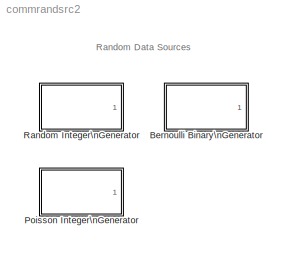
MODEL commrandsrc2
KIND library
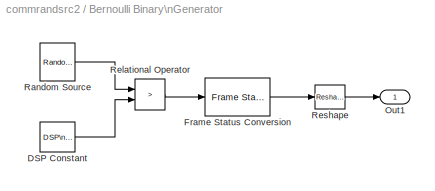
BLOCK [SubSystem] Bernoulli Binary\nGenerator
  MaskCallbackString = |||commblkbernoullisrc2(gcb,'cbFrameBased');||commblkbernoullisrc2(gcb,'cbOrient');
  MaskDescription = Generate a Bernoulli random binary number.  \nTo generate a vector output, specify the probability as a vector.
  MaskDisplay = plot(0,0,100,100,[95 5 10 10 10 reshape(([85*[0:1/15:1-1/15]+10; 85*[1/15:1/15:1]+10]),1,30)],[75 75 75 70 95 90 90 90 90 80 80 80 80 90 90 80 80 80 80 90 90 90 90 80 80 80 80 90 90 90 90 80 80 90 90]); \ndisp('\\nBernoulli\\nBinary')
  MaskEnableString = on,on,on,on,off,on
  MaskHelp = helpview(commbhelp)
  MaskIconFrame = on
  MaskIconOpaque = on
  MaskIconRotate = none
  MaskIconUnits = autoscale
  MaskInitialization = if (frameBased & sampPerFrame > 1)\n	dsp_sampFrame = sampPerFrame;\nelse\n	dsp_sampFrame = 1;\nend;\n[P, seed, eStr] = commblkbernoullisrc2(gcb,'init');\nif (eStr.ecode == 1)\n    error(eStr.emsg);\nend;
  MaskPromptString = Probability of a zero:|Initial seed:|Sample time:|Frame-based outputs|Samples per frame:|Interpret vector parameters as 1-D
  MaskSelfModifiable = on
  MaskStyleString = edit,edit,edit,checkbox,edit,checkbox
  MaskTabNameString = ,,,,,
  MaskToolTipString = on,on,on,on,on,on
  MaskTunableValueString = on,on,on,on,on,on
  MaskType = Bernoulli Binary Generator
  MaskValueString = 0.5|61|1|off|1|off
  MaskVarAliasString = ,,,,,
  MaskVariables = P=@1;seed=@2;Ts=@3;frameBased=@4;sampPerFrame=@5;orient=@6;
  MaskVisibilityString = on,on,on,on,on,on
  MinAlgLoopOccurrences = off
  Ports = [0, 1]
  PropExecContextAcrossSSBoundary = on
  RTWSystemCode = Auto
  TreatAsAtomicUnit = off
BLOCK [Reference] Bernoulli Binary\nGenerator/DSP Constant  REF=dspsrcs4/DSP\nConstant
  FramebasedOutput = off
  InterpretAs1D = off
  Ports = [0, 1]
  SampleMode = Discrete
  SourceBlock = dspsrcs4/DSP\nConstant
  SourceType = DSP Constant
  Ts = Ts
  Value = P
  additionalParams = off
  allowOverrides = on
  continuousOutput = Sample-based
  dataType = Inherit from 'Constant value'
  discreteOutput = Sample-based
  fracBitsMode = Best precision
  framePeriod = Ts
  numFracBits = 15
  sampTime = Ts
  udDataType = sfix(16)
  wordLen = 16
BLOCK [Reference] Bernoulli Binary\nGenerator/Frame Status Conversion  REF=dspsigattribs/Frame Status\nConversion
  Ports = [1, 1]
  SourceBlock = dspsigattribs/Frame Status\nConversion
  SourceType = Frame Status Conversion
  growRefPort = off
  outframe = Sample-based
BLOCK [Outport] Bernoulli Binary\nGenerator/Out1
  BusOutputAsStruct = off
  IconDisplay = Port number
BLOCK [Reference] Bernoulli Binary\nGenerator/Random Source  REF=dspsrcs4/Random\nSource
  CltLength = 12
  DataType = Double
  Diagnostics = AllowInheritedTsInSrc
  Inherit = off
  Max = 1
  Mean = 0
  Min = 0
  NormMethod = Ziggurat
  OutComplex = Real
  Ports = [0, 1]
  RepMode = Specify seed
  SampFrame = dsp_sampFrame
  SampMode = Discrete
  SampTime = Ts
  Seed = seed
  SourceBlock = dspsrcs4/Random\nSource
  SourceType = Random Source
  SrcType = Uniform
  Var = 1
BLOCK [RelationalOperator] Bernoulli Binary\nGenerator/Relational Operator
  LogicDataType = float('double')
  LogicOutDataTypeMode = Specify via dialog
  Operator = >
BLOCK [Reference] Bernoulli Binary\nGenerator/Reshape  REF=simulink/Math\nOperations/Reshape
  OutputDimensionality = Row vector
  OutputDimensions = [sampPerFrame,max(length(P),length(seed))]
  Ports = [1, 1]
  SourceBlock = simulink/Math\nOperations/Reshape
  SourceType = Reshape
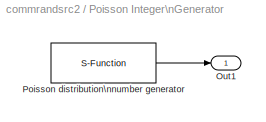
BLOCK [SubSystem] Poisson Integer\nGenerator
  MaskCallbackString = |||commblkpoissrc(gcb,'cbFrameBased');||commblkpoissrc(gcb,'cbOrient');
  MaskDescription = Generate Poisson distributed random integers.
  MaskDisplay = plot(0,0,100,100,[95 5 10 10 10 reshape(([85*[0:1/15:1-1/15]+10; 85*[1/15:1/15:1]+10]),1,30)],[75 75 75 70 95 reshape([randint(1,15,[75,95],54321); randint(1,15,[75,95],54321)],1,30)]);\ndisp('\\nPoisson\\nInteger');\n
  MaskEnableString = on,on,on,on,off,on
  MaskHelp = helpview(commbhelp);
  MaskIconFrame = on
  MaskIconOpaque = on
  MaskIconRotate = none
  MaskIconUnits = autoscale
  MaskInitialization = [eStr, numChan, lambda, seed, orientSBVec] = commblkpoissrc(gcb, 'init');\nif (eStr.ecode==1), \n	error(eStr.emsg);\nend;
  MaskPromptString = Lambda:|Initial seed:|Sample time:|Frame-based outputs|Samples per frame:|Interpret vector parameters as 1-D
  MaskSelfModifiable = on
  MaskStyleString = edit,edit,edit,checkbox,edit,checkbox
  MaskTabNameString = ,,,,,
  MaskToolTipString = on,on,on,on,on,on
  MaskTunableValueString = on,on,on,on,on,on
  MaskType = Poisson Integer Generator
  MaskValueString = 0.1|43|1|off|1|off
  MaskVarAliasString = ,,,,,
  MaskVariables = lambda=@1;seed=@2;Ts=@3;frameBased=@4;sampPerFrame=@5;orient=@6;
  MaskVisibilityString = on,on,on,on,on,on
  MinAlgLoopOccurrences = off
  Ports = [0, 1]
  PropExecContextAcrossSSBoundary = on
  RTWSystemCode = Auto
  TreatAsAtomicUnit = off
BLOCK [Outport] Poisson Integer\nGenerator/Out1
  BusOutputAsStruct = off
  IconDisplay = Port number
BLOCK [S-Function] Poisson Integer\nGenerator/Poisson distribution\nnumber generator
  FunctionName = scompoissrc2
  Parameters = seed, lambda, Ts, numChan, frameBased, sampPerFrame, orient, orientSBVec
  Ports = [0, 1]
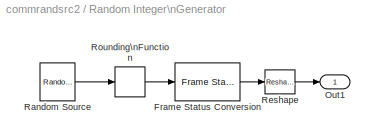
BLOCK [SubSystem] Random Integer\nGenerator
  MaskCallbackString = |||commblkrandintsrc2(gcb,'cbFrameBased');||commblkrandintsrc2(gcb,'cbOrient');
  MaskDescription = Generate random uniformly distributed integers in the range [0, M-1], where M is the M-ary number.
  MaskDisplay = plot(0,0,100,100,[95 5 10 10 10 reshape(([85*[0:1/15:1-1/15]+10; 85*[1/15:1/15:1]+10]),1,30)],[75 75 75 70 95 94 94 78 78 91 91 86 86 88 88 77 77 79 79 78 78 79 79 87 87 85 85 76 76 80 80 95 95 89 89]);\ndisp('\\nRandom\\nInteger')
  MaskEnableString = on,on,on,on,off,on
  MaskHelp = helpview(commbhelp)
  MaskIconFrame = on
  MaskIconOpaque = on
  MaskIconRotate = none
  MaskIconUnits = autoscale
  MaskInitialization = if (frameBased & sampPerFrame > 1), dsp_sampFrame = sampPerFrame;\nelse dsp_sampFrame = 1; end\neStr=commblkrandintsrc2(gcb,'init');\nif(eStr.ecode==1)\n    error(eStr.emsg);\nend
  MaskPromptString = M-ary number:|Initial seed:|Sample time:|Frame-based outputs|Samples per frame:|Interpret vector parameters as 1-D
  MaskSelfModifiable = on
  MaskStyleString = edit,edit,edit,checkbox,edit,checkbox
  MaskTabNameString = ,,,,,
  MaskToolTipString = on,on,on,on,on,on
  MaskTunableValueString = on,on,on,on,on,on
  MaskType = Random Integer Generator
  MaskValueString = 8|37|1|off|1|off
  MaskVarAliasString = ,,,,,
  MaskVariables = mul=@1;seed=@2;Ts=@3;frameBased=@4;sampPerFrame=@5;orient=@6;
  MaskVisibilityString = on,on,on,on,on,on
  MinAlgLoopOccurrences = off
  Ports = [0, 1]
  PropExecContextAcrossSSBoundary = on
  RTWSystemCode = Auto
  TreatAsAtomicUnit = off
BLOCK [Reference] Random Integer\nGenerator/Frame Status Conversion  REF=dspsigattribs/Frame Status\nConversion
  Ports = [1, 1]
  SourceBlock = dspsigattribs/Frame Status\nConversion
  SourceType = Frame Status Conversion
  growRefPort = off
  outframe = Sample-based
BLOCK [Outport] Random Integer\nGenerator/Out1
  BusOutputAsStruct = off
  IconDisplay = Port number
BLOCK [Reference] Random Integer\nGenerator/Random Source  REF=dspsrcs4/Random\nSource
  CltLength = 12
  DataType = Double
  Diagnostics = AllowInheritedTsInSrc
  Inherit = off
  Max = mul-1
  Mean = 0
  Min = -1+eps
  NormMethod = Ziggurat
  OutComplex = Real
  Ports = [0, 1]
  RepMode = Specify seed
  SampFrame = dsp_sampFrame
  SampMode = Discrete
  SampTime = Ts
  Seed = seed
  SourceBlock = dspsrcs4/Random\nSource
  SourceType = Random Source
  SrcType = Uniform
  Var = 1
BLOCK [Reference] Random Integer\nGenerator/Reshape  REF=simulink/Math\nOperations/Reshape
  OutputDimensionality = Row vector
  OutputDimensions = [sampPerFrame,max([length(mul), length(seed)])]
  Ports = [1, 1]
  SourceBlock = simulink/Math\nOperations/Reshape
  SourceType = Reshape
BLOCK [Rounding] Random Integer\nGenerator/Rounding\nFunction
  Operator = ceil
ANNOTATION (root): Random Data Sources
LINE Bernoulli Binary\nGenerator/DSP Constant:1 -> Bernoulli Binary\nGenerator/Relational Operator:2
LINE Bernoulli Binary\nGenerator/Frame Status Conversion:1 -> Bernoulli Binary\nGenerator/Reshape:1
LINE Bernoulli Binary\nGenerator/Random Source:1 -> Bernoulli Binary\nGenerator/Relational Operator:1
LINE Bernoulli Binary\nGenerator/Relational Operator:1 -> Bernoulli Binary\nGenerator/Frame Status Conversion:1
LINE Bernoulli Binary\nGenerator/Reshape:1 -> Bernoulli Binary\nGenerator/Out1:1
LINE Poisson Integer\nGenerator/Poisson distribution\nnumber generator:1 -> Poisson Integer\nGenerator/Out1:1
LINE Random Integer\nGenerator/Frame Status Conversion:1 -> Random Integer\nGenerator/Reshape:1
LINE Random Integer\nGenerator/Random Source:1 -> Random Integer\nGenerator/Rounding\nFunction:1
LINE Random Integer\nGenerator/Reshape:1 -> Random Integer\nGenerator/Out1:1
LINE Random Integer\nGenerator/Rounding\nFunction:1 -> Random Integer\nGenerator/Frame Status Conversion:1
